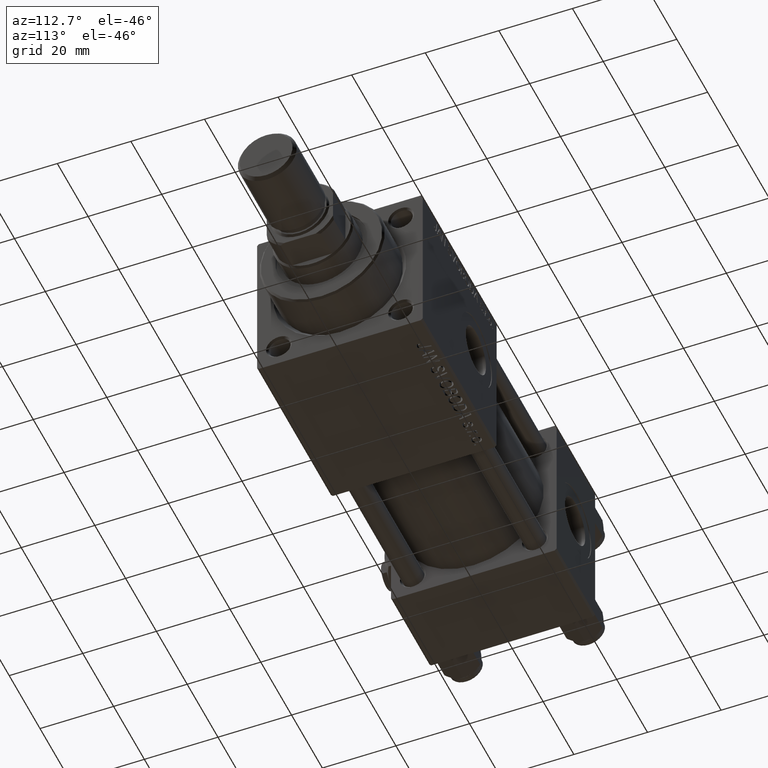
[diagram: clean part render]
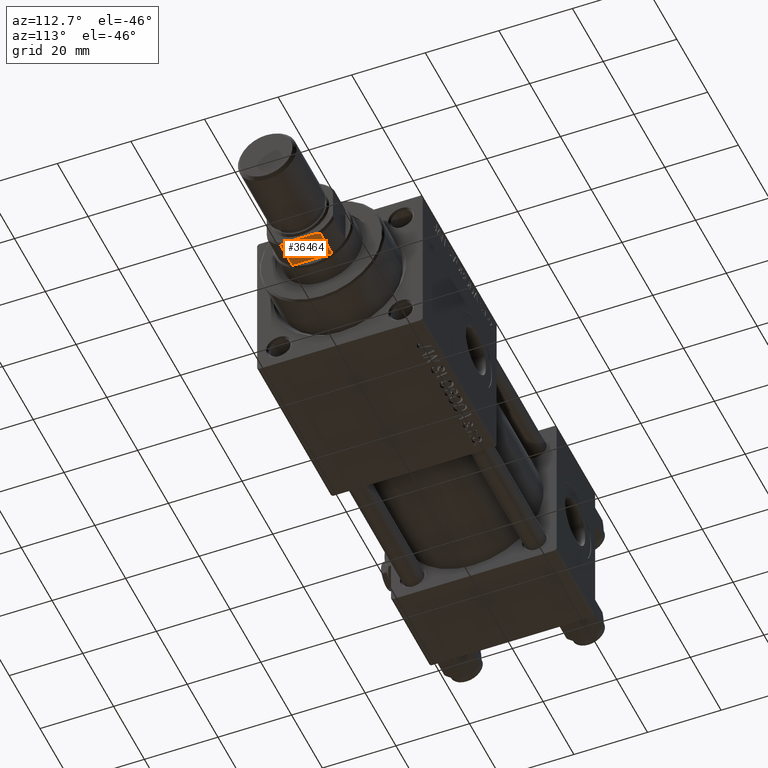
[diagram: same view with one face highlighted and labeled with its STEP entity id]
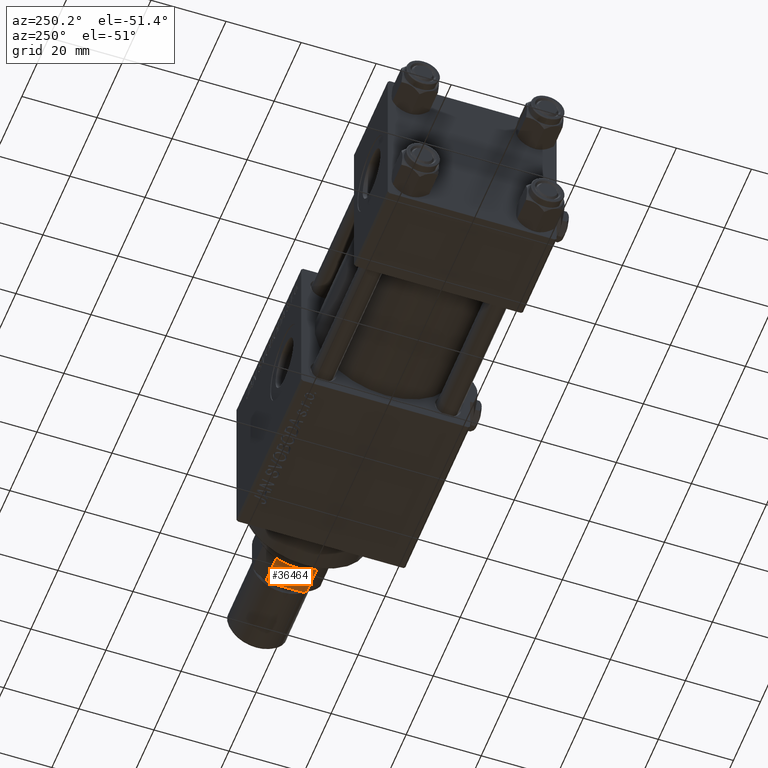
[diagram: same view with one face highlighted and labeled with its STEP entity id]
A machine part, auxiliary view. The second image highlights one B-rep face of the part: STEP entity #36464.
A second angle (auxiliary view) of the same face is appended — the face is thin or edge-on in the first view.
In plain terms, the highlighted planar face has unit normal (0, -0, 1).
Its self-contained STEP definition (entity closure, byte-faithful):
#624 = LINE ( 'NONE', #4362, #14630 ) ;
#1154 = VECTOR ( 'NONE', #46383, 1000.000000000000000 ) ;
#1626 = VERTEX_POINT ( 'NONE', #41600 ) ;
#2136 = CARTESIAN_POINT ( 'NONE',  ( -9.000000000000003553, 8.999999999999998224, 112.9999999999999858 ) ) ;
#3299 = VECTOR ( 'NONE', #25826, 1000.000000000000000 ) ;
#4362 = CARTESIAN_POINT ( 'NONE',  ( -5.408326913195988794, 8.999999999999998224, -0.001000000000001000089 ) ) ;
#7569 = CARTESIAN_POINT ( 'NONE',  ( -5.408326913195988794, 8.999999999999998224, 112.4999999999999716 ) ) ;
#8498 = EDGE_CURVE ( 'NONE', #1626, #23579, #624, .T. ) ;
#8675 = EDGE_CURVE ( 'NONE', #43116, #14404, #11580, .T. ) ;
#9570 = LINE ( 'NONE', #2136, #3299 ) ;
#9903 = CARTESIAN_POINT ( 'NONE',  ( 4.358898943540671311, 8.999999999999998224, 112.9999999999999858 ) ) ;
#11580 = B_SPLINE_CURVE_WITH_KNOTS ( 'NONE', 3,
 ( #9903, #45860, #45592, #30142 ),
 .UNSPECIFIED., .F., .F.,
 ( 4, 4 ),
 ( 0.000000000000000000, 0.001162453897363196044 ),
 .UNSPECIFIED. ) ;
#11618 = EDGE_CURVE ( 'NONE', #30491, #14404, #16642, .T. ) ;
#13891 = FACE_OUTER_BOUND ( 'NONE', #48845, .T. ) ;
#14404 = VERTEX_POINT ( 'NONE', #27031 ) ;
#14630 = VECTOR ( 'NONE', #36832, 1000.000000000000000 ) ;
#15867 = ORIENTED_EDGE ( 'NONE', *, *, #11618, .F. ) ;
#16642 = LINE ( 'NONE', #49126, #1154 ) ;
#17283 = VECTOR ( 'NONE', #24010, 1000.000000000000000 ) ;
#19542 = EDGE_CURVE ( 'NONE', #23579, #34994, #48219, .T. ) ;
#20313 = CARTESIAN_POINT ( 'NONE',  ( -4.358898943540630455, 8.999999999999998224, 112.9999999999999858 ) ) ;
#21522 = LINE ( 'NONE', #25771, #17283 ) ;
#22403 = EDGE_CURVE ( 'NONE', #43116, #34994, #9570, .T. ) ;
#23579 = VERTEX_POINT ( 'NONE', #7569 ) ;
#24010 = DIRECTION ( 'NONE',  ( -1.000000000000000000, -0.000000000000000000, -0.000000000000000000 ) ) ;
#25366 = DIRECTION ( 'NONE',  ( 0.000000000000000000, -1.000000000000000000, 0.000000000000000000 ) ) ;
#25771 = CARTESIAN_POINT ( 'NONE',  ( -9.000000000000003553, 8.999999999999998224, 105.0000000000000000 ) ) ;
#25826 = DIRECTION ( 'NONE',  ( -1.000000000000000000, -0.000000000000000000, -0.000000000000000000 ) ) ;
#27031 = CARTESIAN_POINT ( 'NONE',  ( 5.408326913195989682, 8.999999999999998224, 112.4999999999999858 ) ) ;
#28272 = ORIENTED_EDGE ( 'NONE', *, *, #8675, .T. ) ;
#28357 = AXIS2_PLACEMENT_3D ( 'NONE', #42134, #25366, #38393 ) ;
#30139 = PLANE ( 'NONE',  #28357 ) ;
#30142 = CARTESIAN_POINT ( 'NONE',  ( 5.408326913195989682, 8.999999999999998224, 112.4999999999999858 ) ) ;
#30491 = VERTEX_POINT ( 'NONE', #40563 ) ;
#34075 = CARTESIAN_POINT ( 'NONE',  ( 4.358898943540671311, 8.999999999999998224, 112.9999999999999858 ) ) ;
#34994 = VERTEX_POINT ( 'NONE', #51030 ) ;
#36464 = ADVANCED_FACE ( 'NONE', ( #13891 ), #30139, .F. ) ;
#36604 = EDGE_CURVE ( 'NONE', #30491, #1626, #21522, .T. ) ;
#36832 = DIRECTION ( 'NONE',  ( -0.000000000000000000, -0.000000000000000000, 1.000000000000000000 ) ) ;
#38393 = DIRECTION ( 'NONE',  ( 0.000000000000000000, -0.000000000000000000, -1.000000000000000000 ) ) ;
#40287 = CARTESIAN_POINT ( 'NONE',  ( -5.408326913195988794, 8.999999999999998224, 112.4999999999999716 ) ) ;
#40563 = CARTESIAN_POINT ( 'NONE',  ( 5.408326913195989682, 8.999999999999998224, 105.0000000000000142 ) ) ;
#41600 = CARTESIAN_POINT ( 'NONE',  ( -5.408326913195987018, 8.999999999999998224, 105.0000000000000142 ) ) ;
#42134 = CARTESIAN_POINT ( 'NONE',  ( -9.000000000000003553, 8.999999999999998224, 112.9999999999999858 ) ) ;
#43116 = VERTEX_POINT ( 'NONE', #34075 ) ;
#43896 = ORIENTED_EDGE ( 'NONE', *, *, #19542, .T. ) ;
#44273 = CARTESIAN_POINT ( 'NONE',  ( -5.063687070142434798, 8.999999999999998224, 112.6775166608138932 ) ) ;
#44775 = ORIENTED_EDGE ( 'NONE', *, *, #36604, .T. ) ;
#45592 = CARTESIAN_POINT ( 'NONE',  ( 5.063687070142444568, 8.999999999999998224, 112.6775166608139074 ) ) ;
#45860 = CARTESIAN_POINT ( 'NONE',  ( 4.714305797500250250, 8.999999999999998224, 112.8450817439748448 ) ) ;
#46383 = DIRECTION ( 'NONE',  ( -0.000000000000000000, -0.000000000000000000, 1.000000000000000000 ) ) ;
#47694 = ORIENTED_EDGE ( 'NONE', *, *, #22403, .F. ) ;
#48219 = B_SPLINE_CURVE_WITH_KNOTS ( 'NONE', 3,
 ( #40287, #44273, #52281, #20313 ),
 .UNSPECIFIED., .F., .F.,
 ( 4, 4 ),
 ( 0.000000000000000000, 0.001162453897363238762 ),
 .UNSPECIFIED. ) ;
#48845 = EDGE_LOOP ( 'NONE', ( #47694, #28272, #15867, #44775, #52101, #43896 ) ) ;
#49126 = CARTESIAN_POINT ( 'NONE',  ( 5.408326913195989682, 8.999999999999998224, -0.001000000000001000089 ) ) ;
#51030 = CARTESIAN_POINT ( 'NONE',  ( -4.358898943540630455, 8.999999999999998224, 112.9999999999999858 ) ) ;
#52101 = ORIENTED_EDGE ( 'NONE', *, *, #8498, .T. ) ;
#52281 = CARTESIAN_POINT ( 'NONE',  ( -4.714305797500221828, 8.999999999999998224, 112.8450817439748448 ) ) ;